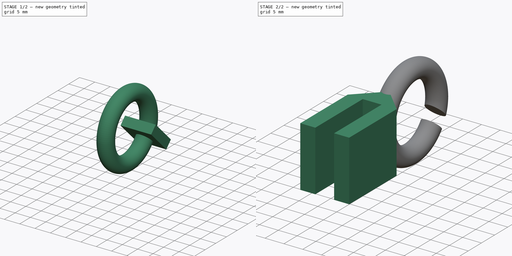
[diagram: build sequence overview — one tinted view per stage of 2, left to right]
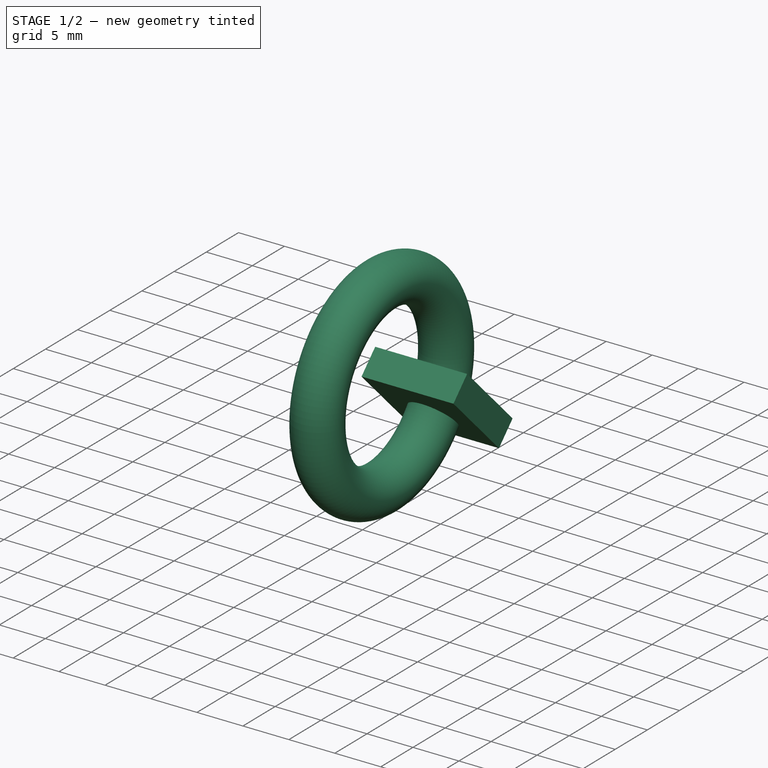
[diagram: stage 1 of 2 — iso view after this stage's code; geometry added in this stage tinted green]
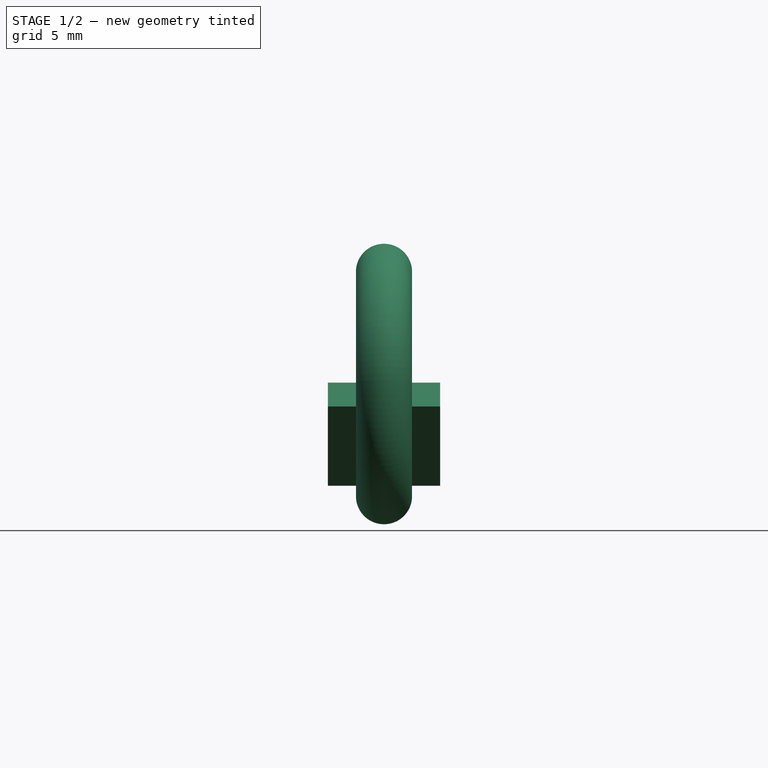
[diagram: stage 1 of 2 — front view after this stage's code; geometry added in this stage tinted green]
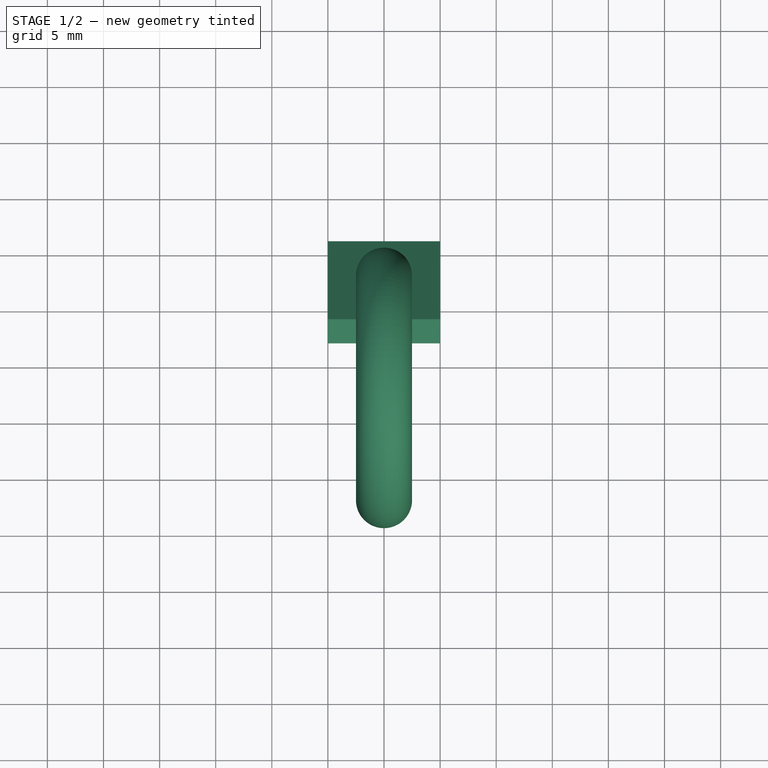
[diagram: stage 1 of 2 — top view after this stage's code; geometry added in this stage tinted green]
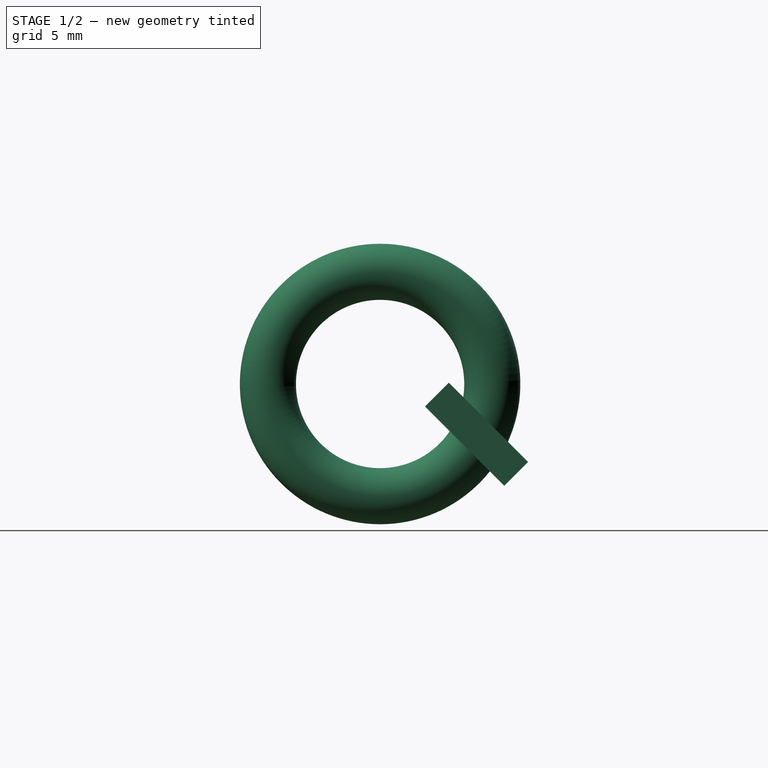
[diagram: stage 1 of 2 — right view after this stage's code; geometry added in this stage tinted green]
FCSTD DOCUMENT  (FreeCAD 0.18R4 (GitTag))
Label: FilamentGuide
License: All rights reserved
LicenseURL: http://en.wikipedia.org/wiki/All_rights_reserved
objects: Sketcher::SketchObject×1, Spreadsheet::Sheet×1, PartDesign::Pad×1, PartDesign::Body×1, Part::Torus×1, Part::Box×1, Part::Cut×1
note: 7 computed .brp shape members not serialized (recipe doc carries the construction recipe); baked Part::Feature solids carry a one-line shape summary decoded from their .brp

FEATURE [PartDesign::Body] Body  label="Filament Guide"
  Group = -> [Sketch,Pad]
  Origin = -> Origin
  Tip = -> Pad
FEATURE [Part::Torus] Torus
  Angle1 = 0
  Angle2 = 0
  Angle3 = 360
  AttacherType = Attacher::AttachEngine3D
  Placement = pos=(0,8,8) rot=(0,1,0;1.5708rad)
  Radius1 = 10
  Radius2 = 2.5
  expr: Placement.Base.z = Dimensions.WallWidth / 2
  expr: Angle3 = Spreadsheet.TorusArcAngle
  expr: Angle2 = Dimensions.TorusDiscAngle2
  expr: Angle1 = Dimensions.TorusDiscAngle1
  expr: Radius2 = Spreadsheet.TorusDiscRadius
  expr: Radius1 = Spreadsheet.TorusRadius
FEATURE [Part::Box] Box  label="Cube"
  AttacherType = Attacher::AttachEngine3D
  Height = 3
  Length = 10
  Placement = pos=(-5,12,6) rot=(-1,0,0;0.785398rad)
  Width = 10
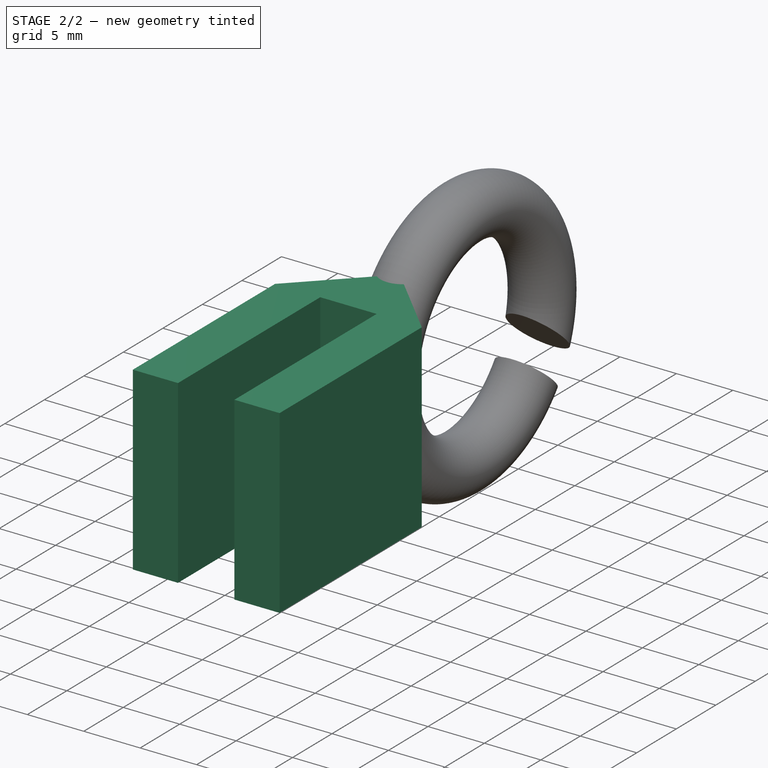
[diagram: stage 2 of 2 — iso view after this stage's code; geometry added in this stage tinted green]
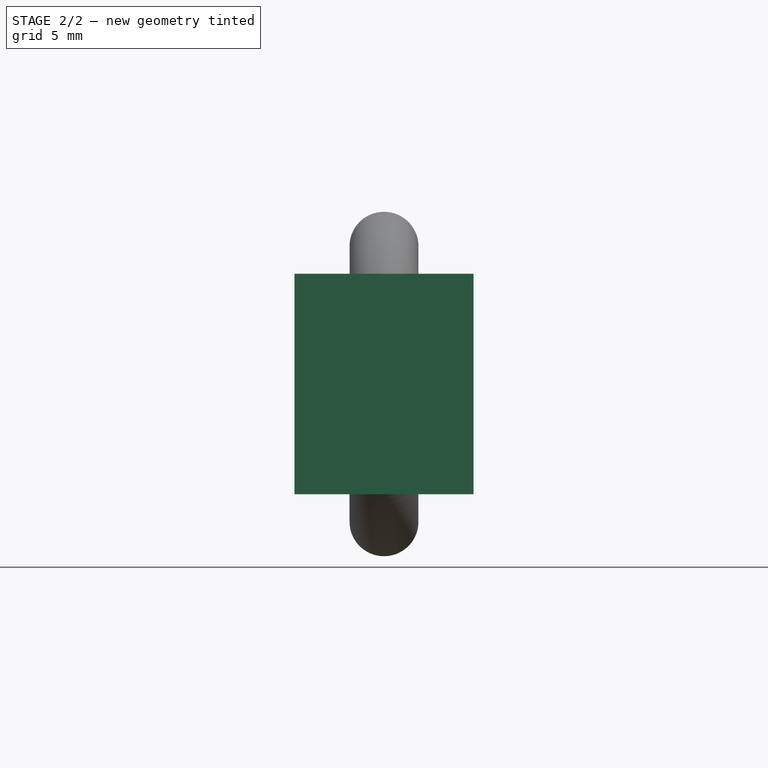
[diagram: stage 2 of 2 — front view after this stage's code; geometry added in this stage tinted green]
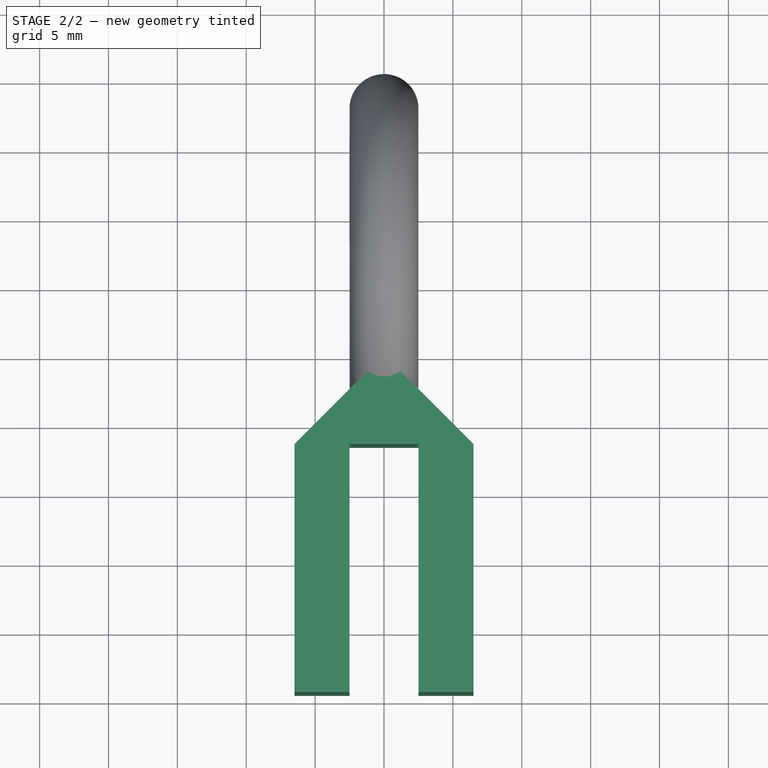
[diagram: stage 2 of 2 — top view after this stage's code; geometry added in this stage tinted green]
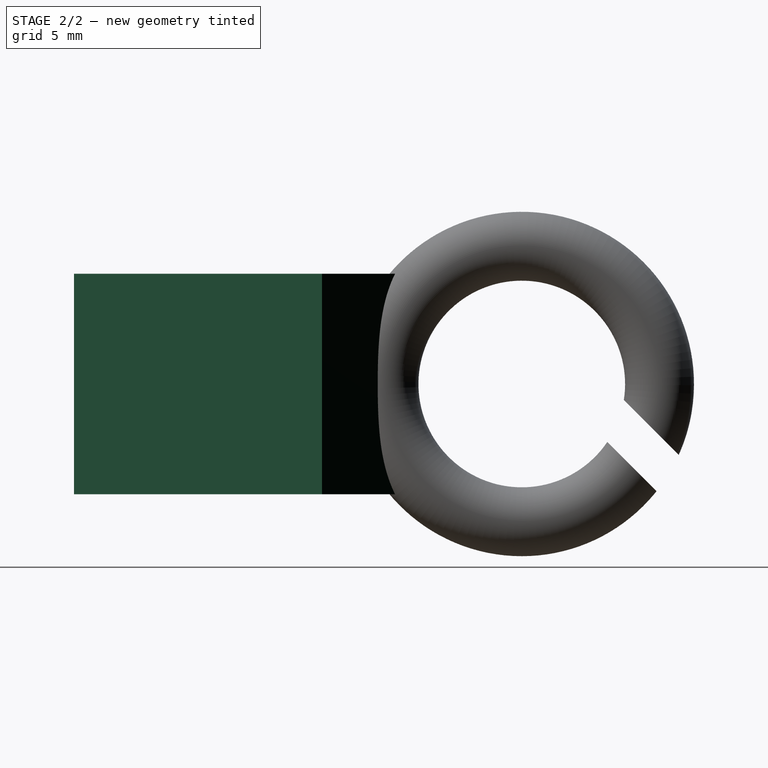
[diagram: stage 2 of 2 — right view after this stage's code; geometry added in this stage tinted green]
FEATURE [Sketcher::SketchObject] Sketch
  MapMode = 5
  Support = -> [XY_Plane]
  expr: Constraints[25] = Dimensions.WallGap
  expr: Constraints[17] = Dimensions.WallThickness
  expr: Constraints[16] = Dimensions.WallThickness
  sketch-geometry (9):
    g0: LineSegment StartX=-6.5 StartY=-6.5 StartZ=0 EndX=-6.5 EndY=-24.5 EndZ=0
    g1: LineSegment StartX=-6.5 StartY=-24.5 StartZ=0 EndX=-2.5 EndY=-24.5 EndZ=0
    g2: LineSegment StartX=-2.5 StartY=-24.5 StartZ=0 EndX=-2.5 EndY=-6.5 EndZ=0
    g3: LineSegment StartX=-2.5 StartY=-6.5 StartZ=0 EndX=2.5 EndY=-6.5 EndZ=0
    g4: LineSegment StartX=2.5 StartY=-6.5 StartZ=0 EndX=2.5 EndY=-24.5 EndZ=0
    g5: LineSegment StartX=2.5 StartY=-24.5 StartZ=0 EndX=6.5 EndY=-24.5 EndZ=0
    g6: LineSegment StartX=6.5 StartY=-24.5 StartZ=0 EndX=6.5 EndY=-6.5 EndZ=0
    g7: LineSegment StartX=6.5 StartY=-6.5 StartZ=0 EndX=0 EndY=0 EndZ=0
    g8: LineSegment StartX=0 StartY=0 StartZ=0 EndX=-6.5 EndY=-6.5 EndZ=0
  constraints (26):
    c: Vertical(g0)
    c: Coincident(g1,g0)
    c: Horizontal(g1)
    c: Coincident(g6,g5)
    c: Coincident(g8,g7)
    c: Horizontal(g5)
    c: Horizontal(g3)
    c: Vertical(g2)
    c: Vertical(g4)
    c: Vertical(g6)
    c: Coincident(g7,g6)
    c: Coincident(g5,g4)
    c: Coincident(g4,g3)
    c: Coincident(g2,g3)
    c: Coincident(g0,g8)
    c: Coincident(g2,g1)
    c: DistanceX(g1,g1) = 4
    c: DistanceX(g5,g5) = 4
    c: DistanceY(g0,g0) = 18
    c: Horizontal(g0,g2)
    c: Horizontal(g3,g6)
    c: Horizontal(g1,g4)
    c: DistanceX(g7,g6) = 6.5
    c: DistanceY(g6,g7) = 6.5
    c: Coincident(g7,g-1)
    c: DistanceX(g1,g4) = 5
FEATURE [Spreadsheet::Sheet] Spreadsheet  label="Dimensions"
  cells = A1=WallGap; B1(WallGap)==5mm; A2=WallThickness; B2(WallThickness)==4mm; A3=WallWidth; B3(WallWidth)==16mm; A4=WallHeight; B4(WallHeight)==18mm; A5=TorusRadius; B5(TorusRadius)==10mm; A6=TorusDiscRadius; B6(TorusDiscRadius)==2.5mm; A7=TorusDiscAngle1; B7(TorusDiscAngle1)==0deg; A8=TorusDiscAngle2; B8(TorusDiscAngle2)==0deg; A9=TorusArcAngle; B9(TorusArcAngle)==360deg
FEATURE [PartDesign::Pad] Pad
  Length = 16
  Length2 = 100
  Profile = -> Sketch
  Type = 0
  expr: Length = Dimensions.WallWidth
FEATURE [Part::Cut] Cut
  Base = -> Torus
  Tool = -> Box
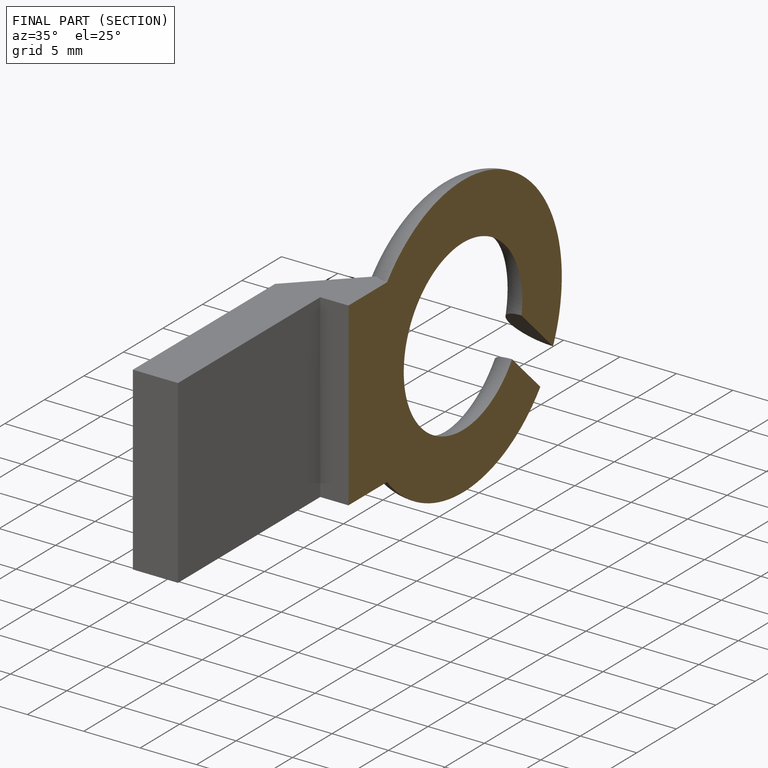
[diagram: finished part — half-section view (interior)]
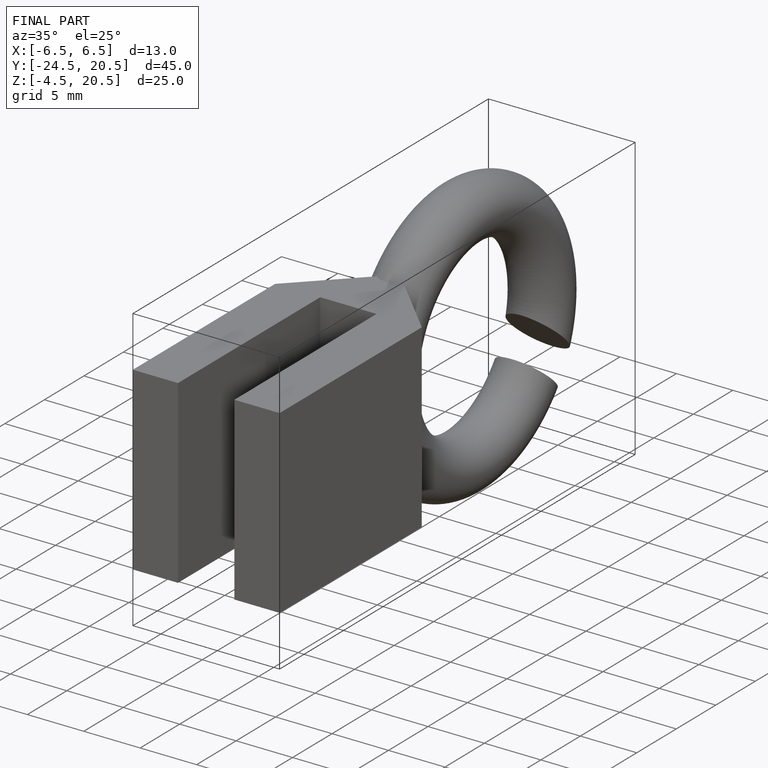
[diagram: finished part — iso view with bounding-box wireframe]
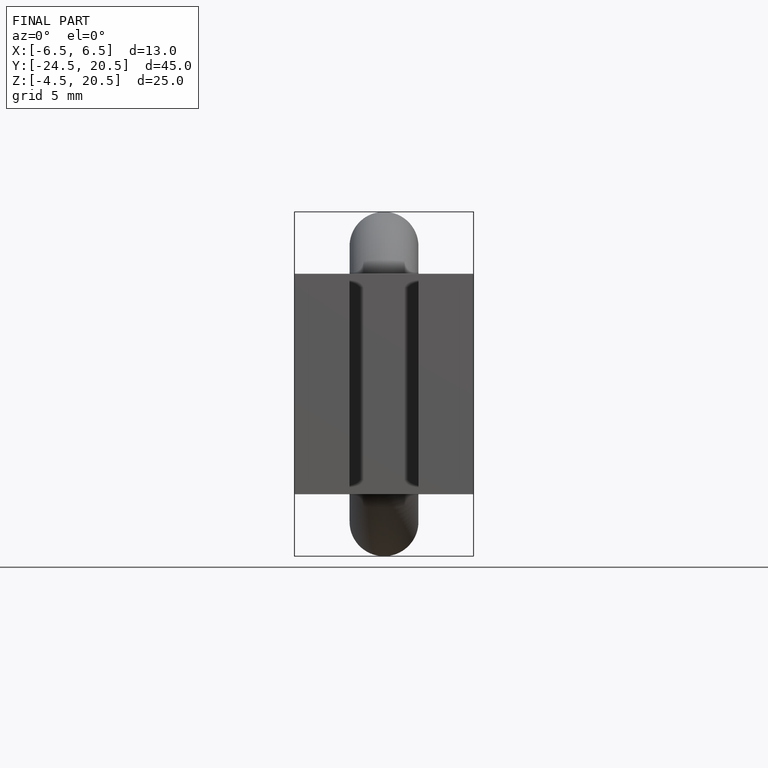
[diagram: finished part — front view with bounding-box wireframe]
